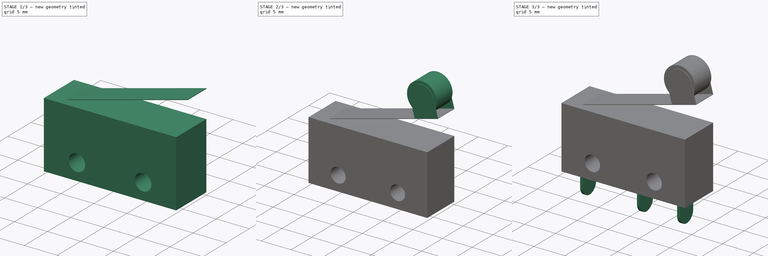
[diagram: build sequence overview — one tinted view per stage of 3, left to right]
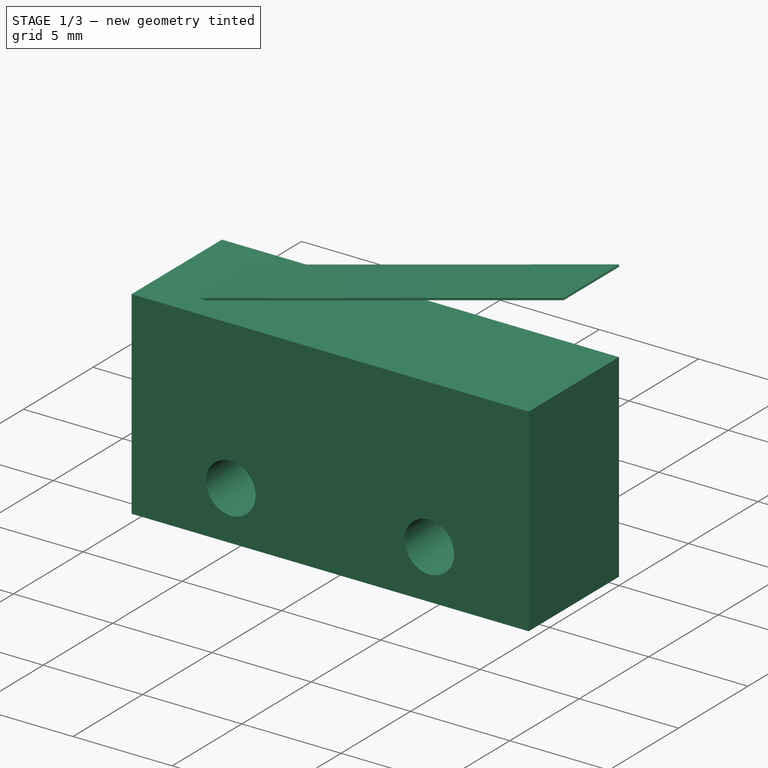
[diagram: stage 1 of 3 — iso view after this stage's code; geometry added in this stage tinted green]
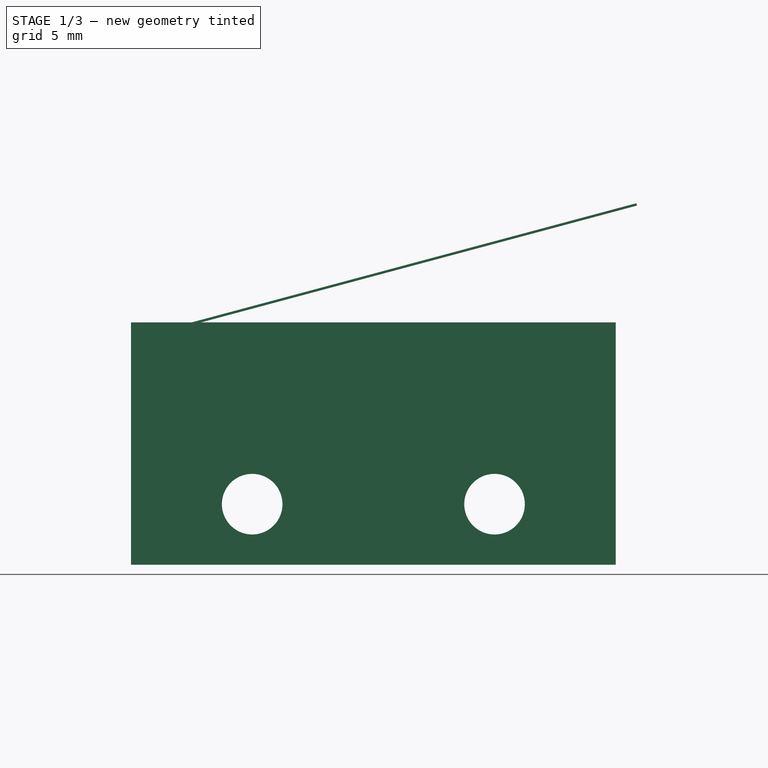
[diagram: stage 1 of 3 — front view after this stage's code; geometry added in this stage tinted green]
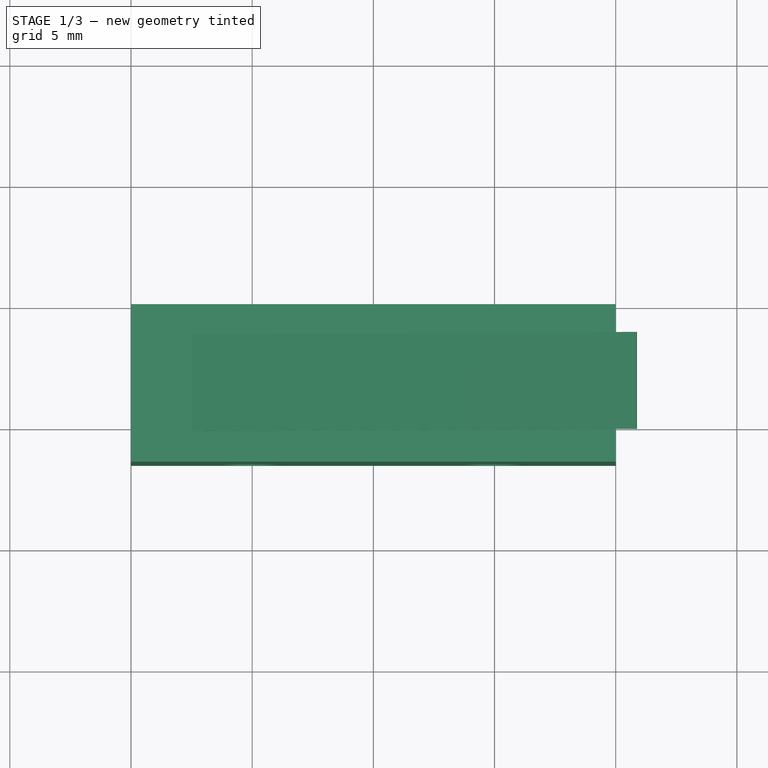
[diagram: stage 1 of 3 — top view after this stage's code; geometry added in this stage tinted green]
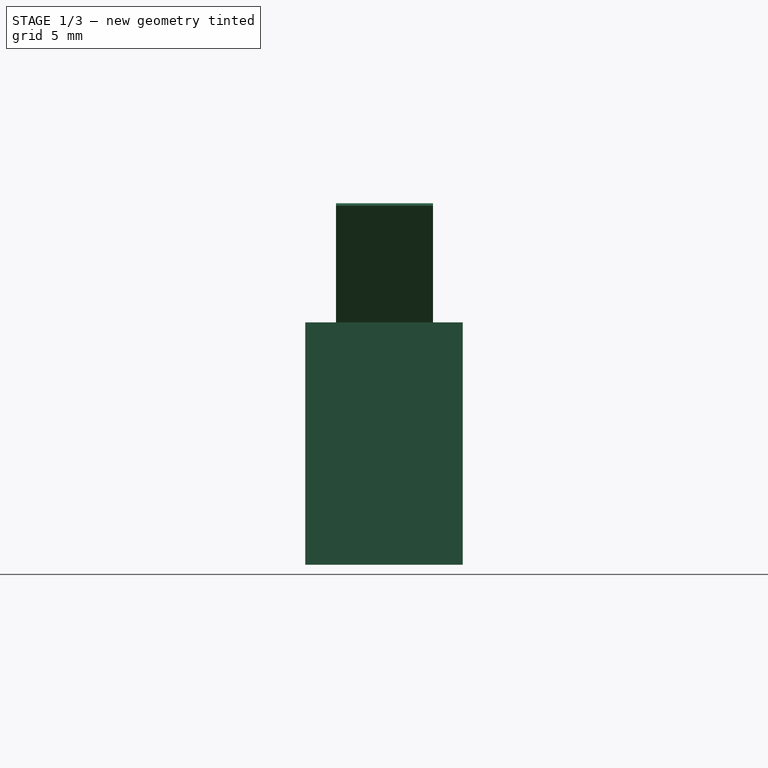
[diagram: stage 1 of 3 — right view after this stage's code; geometry added in this stage tinted green]
FCSTD DOCUMENT  (FreeCAD 1.0R39285 (Git))
Label: InduSKY-Endschalter
License: All rights reserved
LicenseURL: https://en.wikipedia.org/wiki/All_rights_reserved
objects: Sketcher::SketchObject×5, PartDesign::Pad×5, PartDesign::Fillet×2, PartDesign::Body×1
note: 32 computed .brp shape members not serialized (recipe doc carries the construction recipe); baked Part::Feature solids carry a one-line shape summary decoded from their .brp

FEATURE [Sketcher::SketchObject] Sketch
  ArcFitTolerance = 1e-06
  AttachmentSupport = -> [XZ_Plane]
  FullyConstrained = true
  MakeInternals = false
  MapMode = 5
  Placement = pos=(0,0,0) rot=(1,0,0;1.5708rad)
  sketch-geometry (10):
    g0: LineSegment StartX=0 StartY=0 StartZ=0 EndX=20 EndY=0 EndZ=0
    g1: LineSegment StartX=20 StartY=0 StartZ=0 EndX=20 EndY=10 EndZ=0
    g2: LineSegment StartX=20 StartY=10 StartZ=0 EndX=0 EndY=10 EndZ=0
    g3: LineSegment StartX=0 StartY=10 StartZ=0 EndX=0 EndY=0 EndZ=0
    g4: Circle CenterX=5 CenterY=2.5 CenterZ=0 NormalX=0 NormalY=0 NormalZ=1 AngleXU=0 Radius=1.25
    g5: Circle CenterX=15 CenterY=2.5 CenterZ=0 NormalX=0 NormalY=0 NormalZ=1 AngleXU=0 Radius=1.25
    g6: LineSegment [constr] StartX=5 StartY=2.5 StartZ=0 EndX=0 EndY=2.5 EndZ=0
    g7: LineSegment [constr] StartX=5 StartY=2.5 StartZ=0 EndX=15 EndY=2.5 EndZ=0
    g8: LineSegment [constr] StartX=15 StartY=2.5 StartZ=0 EndX=20 EndY=2.5 EndZ=0
    g9: LineSegment [constr] StartX=15 StartY=2.5 StartZ=0 EndX=15 EndY=0 EndZ=0
  constraints (28):
    c: Coincident(g0,g1)
    c: Coincident(g1,g2)
    c: Coincident(g2,g3)
    c: Coincident(g3,g0)
    c: Horizontal(g0)
    c: Horizontal(g2)
    c: Vertical(g1)
    c: Vertical(g3)
    c: Distance(g1,g3) = 20
    c: Distance(g0,g2) = 10
    c: Coincident(g0,g-1)
    c: Equal(g4,g5)
    c: Coincident(g6,g4)
    c: PointOnObject(g6,g3)
    c: Horizontal(g6)
    c: Coincident(g7,g4)
    c: Coincident(g7,g5)
    c: Horizontal(g7)
    c: Coincident(g8,g5)
    c: PointOnObject(g8,g1)
    c: Horizontal(g8)
    c: Equal(g6,g8)
    c: DistanceX(g8,g8) = 5
    c: Diameter(g5) = 2.5
    c: Coincident(g9,g5)
    c: PointOnObject(g9,g0)
    c: Vertical(g9)
    c: DistanceY(g9,g9) = 2.5
FEATURE [PartDesign::Pad] Pad
  Direction = (0,-1,2e-16)
  Length = 6.5
  Length2 = 10
  Placement = pos=(0,0,0) rot=(1,0,0;1.5708rad)
  Profile = -> Sketch
  ReferenceAxis = -> Sketch [N_Axis]
  Refine = true
  Suppressed = false
  Type = 0
FEATURE [Sketcher::SketchObject] Sketch001
  ArcFitTolerance = 1e-06
  AttachmentOffset = pos=(-2.5,-1.5,0) rot=(0,1,0;0.261799rad)
  AttachmentSupport = -> [Pad]
  ExternalGeometry = -> [Pad]
  FullyConstrained = true
  MakeInternals = false
  MapMode = 5
  Placement = pos=(2.5,1.5,10) rot=(-0.130526,0,0.991445;3.14159rad)
  sketch-geometry (6):
    g0: LineSegment StartX=0 StartY=2.72892 StartZ=0 EndX=0 EndY=6.72892 EndZ=0
    g1: LineSegment StartX=0 StartY=6.72892 StartZ=0 EndX=-19 EndY=6.72892 EndZ=0
    g2: LineSegment StartX=-19 StartY=6.72892 StartZ=0 EndX=-19 EndY=2.72892 EndZ=0
    g3: LineSegment StartX=-19 StartY=2.72892 StartZ=0 EndX=0 EndY=2.72892 EndZ=0
    g4: LineSegment [constr] StartX=2.41481 StartY=8 StartZ=0 EndX=0 EndY=6.72892 EndZ=0
    g5: LineSegment [constr] StartX=0 StartY=2.72892 StartZ=0 EndX=0 EndY=0 EndZ=0
  constraints (16):
    c: Coincident(g0,g1)
    c: Coincident(g1,g2)
    c: Coincident(g2,g3)
    c: Coincident(g3,g0)
    c: Vertical(g0)
    c: Vertical(g2)
    c: Horizontal(g1)
    c: Horizontal(g3)
    c: Distance(g0,g2) = 19
    c: Distance(g1,g3) = 4
    c: PointOnObject(g0,g-2)
    c: Coincident(g4,g-3)
    c: Coincident(g4,g0)
    c: Coincident(g5,g0)
    c: Coincident(g5,g-1)
    c: Equal(g5,g4)
FEATURE [PartDesign::Pad] Pad001
  BaseFeature = -> Pad
  Direction = (-0.258819,0,0.965926)
  Length = 0.1
  Length2 = 10
  Placement = pos=(0,0,0) rot=(1,0,0;1.5708rad)
  Profile = -> Sketch001
  ReferenceAxis = -> Sketch001 [N_Axis]
  Refine = true
  Reversed = true
  Suppressed = false
  Type = 0
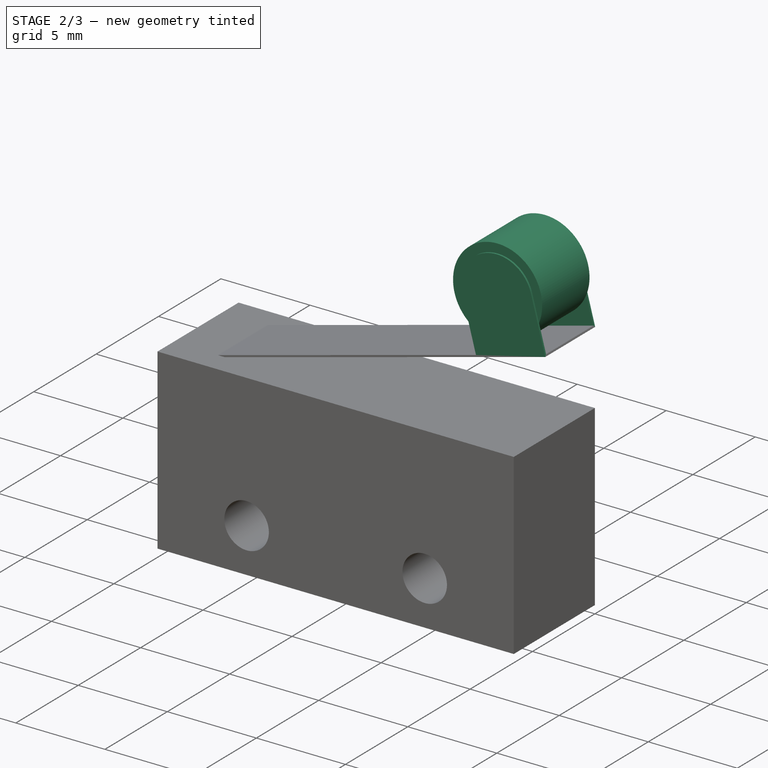
[diagram: stage 2 of 3 — iso view after this stage's code; geometry added in this stage tinted green]
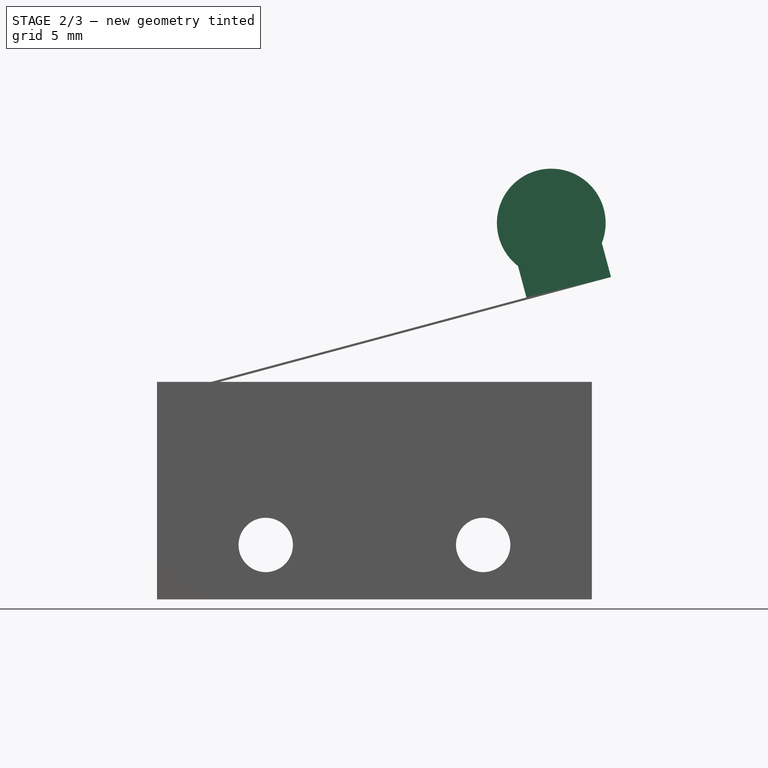
[diagram: stage 2 of 3 — front view after this stage's code; geometry added in this stage tinted green]
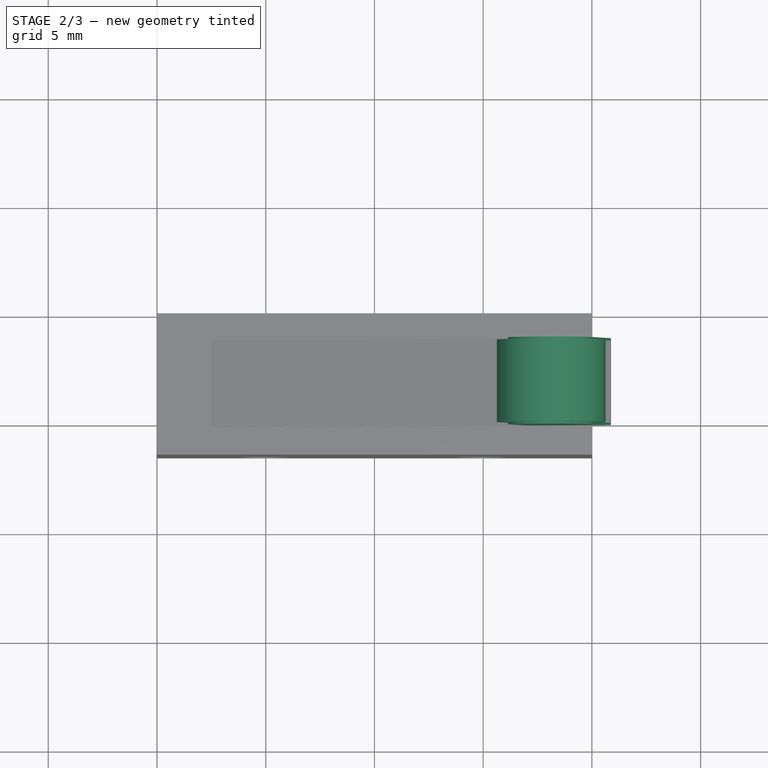
[diagram: stage 2 of 3 — top view after this stage's code; geometry added in this stage tinted green]
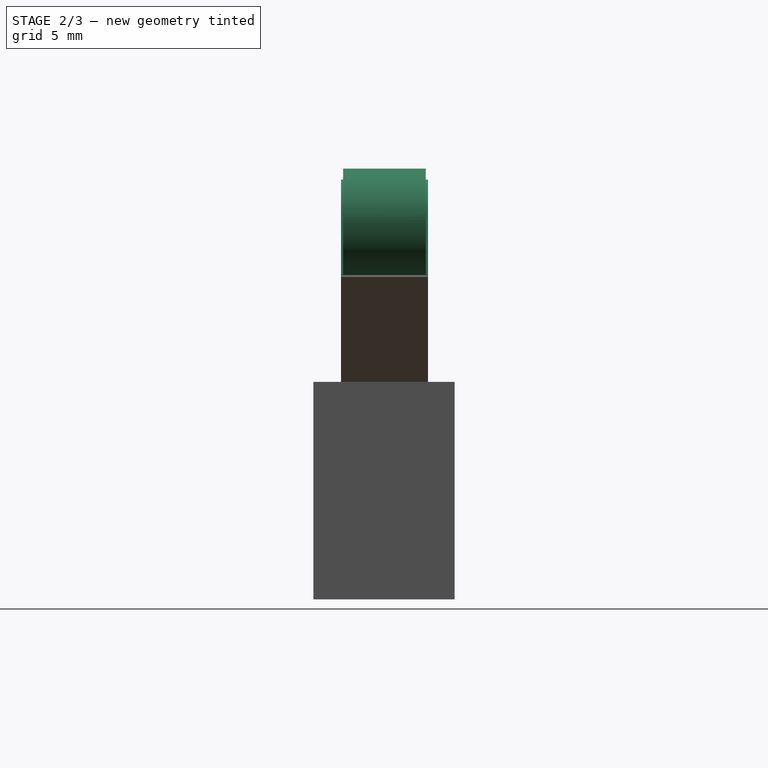
[diagram: stage 2 of 3 — right view after this stage's code; geometry added in this stage tinted green]
FEATURE [Sketcher::SketchObject] Sketch002
  ArcFitTolerance = 1e-06
  AttachmentSupport = -> [Pad001]
  ExternalGeometry = -> [Pad001]
  FullyConstrained = true
  MakeInternals = false
  MapMode = 5
  Placement = pos=(-2.33253,0,8.70513) rot=(-0.130526,0,0.991445;3.14159rad)
  sketch-geometry (8):
    g0: LineSegment StartX=-24.003 StartY=5.22892 StartZ=0 EndX=-24.003 EndY=5.12892 EndZ=0
    g1: LineSegment StartX=-24.003 StartY=5.12892 StartZ=0 EndX=-20.003 EndY=5.12892 EndZ=0
    g2: LineSegment StartX=-20.003 StartY=5.12892 StartZ=0 EndX=-20.003 EndY=5.22892 EndZ=0
    g3: LineSegment StartX=-20.003 StartY=5.22892 StartZ=0 EndX=-24.003 EndY=5.22892 EndZ=0
    g4: LineSegment StartX=-24.003 StartY=1.22892 StartZ=0 EndX=-20.003 EndY=1.22892 EndZ=0
    g5: LineSegment StartX=-20.003 StartY=1.22892 StartZ=0 EndX=-20.003 EndY=1.32892 EndZ=0
    g6: LineSegment StartX=-20.003 StartY=1.32892 StartZ=0 EndX=-24.003 EndY=1.32892 EndZ=0
    g7: LineSegment StartX=-24.003 StartY=1.32892 StartZ=0 EndX=-24.003 EndY=1.22892 EndZ=0
  constraints (22):
    c: Coincident(g0,g1)
    c: Coincident(g1,g2)
    c: Coincident(g2,g3)
    c: Coincident(g3,g0)
    c: Vertical(g0)
    c: Vertical(g2)
    c: Horizontal(g1)
    c: Horizontal(g3)
    c: Distance(g0,g2) = 4
    c: Distance(g1,g3) = 0.1
    c: Coincident(g0,g-3)
    c: Coincident(g4,g5)
    c: Coincident(g5,g6)
    c: Coincident(g6,g7)
    c: Coincident(g7,g4)
    c: Horizontal(g4)
    c: Horizontal(g6)
    c: Vertical(g5)
    c: Vertical(g7)
    c: Coincident(g4,g-4)
    c: Equal(g6,g1)
    c: Equal(g5,g2)
FEATURE [PartDesign::Pad] Pad002
  BaseFeature = -> Pad001
  Direction = (-0.258819,0,0.965926)
  Length = 5
  Length2 = 10
  Placement = pos=(0,0,0) rot=(1,0,0;1.5708rad)
  Profile = -> Sketch002
  ReferenceAxis = -> Sketch002 [N_Axis]
  Refine = true
  Suppressed = false
  Type = 0
FEATURE [PartDesign::Fillet] Fillet
  Base = -> Pad002 [Edge45,Edge42,Edge35,Edge44]
  BaseFeature = -> Pad002
  Placement = pos=(0,0,0) rot=(1,0,0;1.5708rad)
  Radius = 1.99
  Refine = true
  SupportTransform = false
  Suppressed = false
  UseAllEdges = false
FEATURE [Sketcher::SketchObject] Sketch003
  ArcFitTolerance = 1e-06
  AttachmentSupport = -> [Fillet]
  ExternalGeometry = -> [Fillet]
  FullyConstrained = true
  MakeInternals = false
  MapMode = 5
  Placement = pos=(0,-1.32892,0) rot=(1,0,0;1.5708rad)
  sketch-geometry (1):
    g0: Circle CenterX=18.132 CenterY=17.3048 CenterZ=0 NormalX=0 NormalY=0 NormalZ=1 AngleXU=0 Radius=2.5
  constraints (2):
    c: Diameter(g0) = 5
    c: Coincident(g0,g-3)
FEATURE [PartDesign::Pad] Pad003
  BaseFeature = -> Fillet
  Direction = (0,-1,2e-16)
  Length = 3.8
  Length2 = 10
  Placement = pos=(0,0,0) rot=(1,0,0;1.5708rad)
  Profile = -> Sketch003
  ReferenceAxis = -> Sketch003 [N_Axis]
  Refine = true
  Suppressed = false
  Type = 0
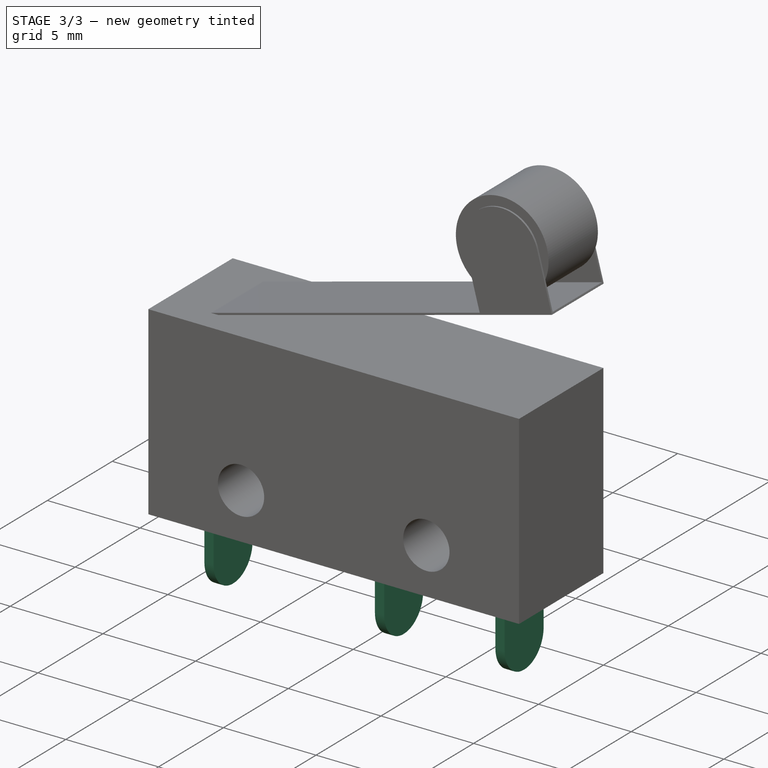
[diagram: stage 3 of 3 — iso view after this stage's code; geometry added in this stage tinted green]
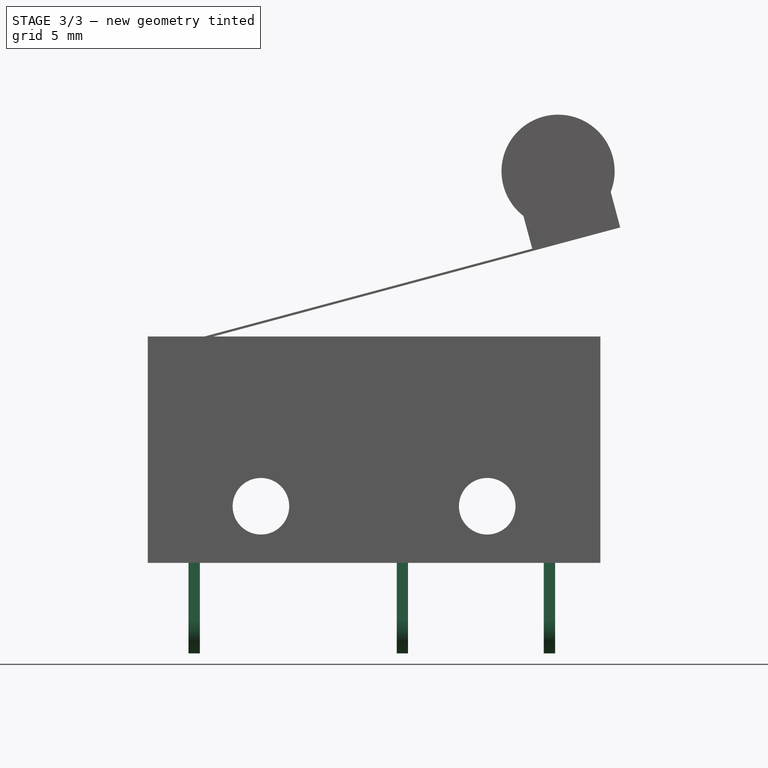
[diagram: stage 3 of 3 — front view after this stage's code; geometry added in this stage tinted green]
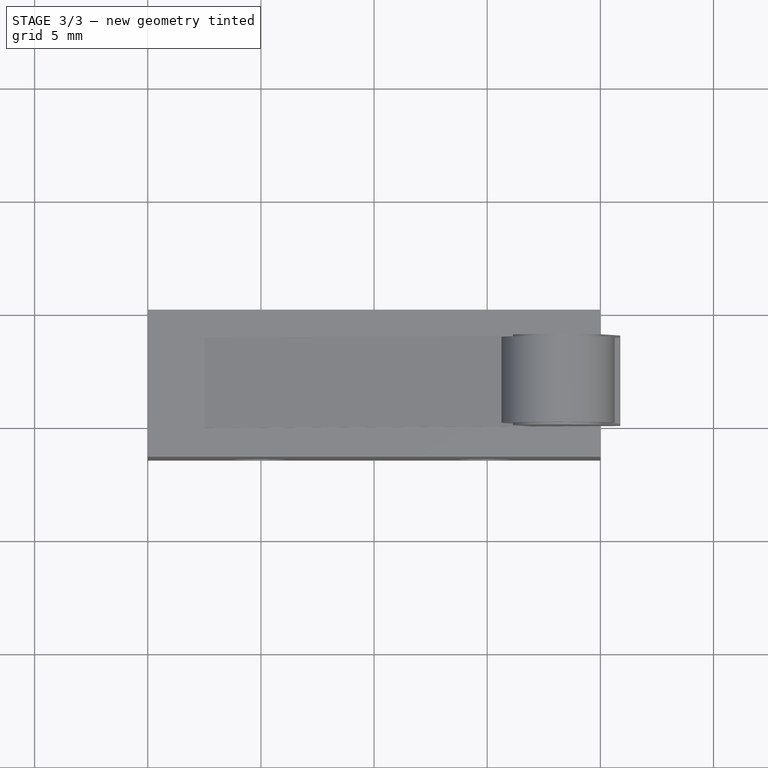
[diagram: stage 3 of 3 — top view after this stage's code; geometry added in this stage tinted green]
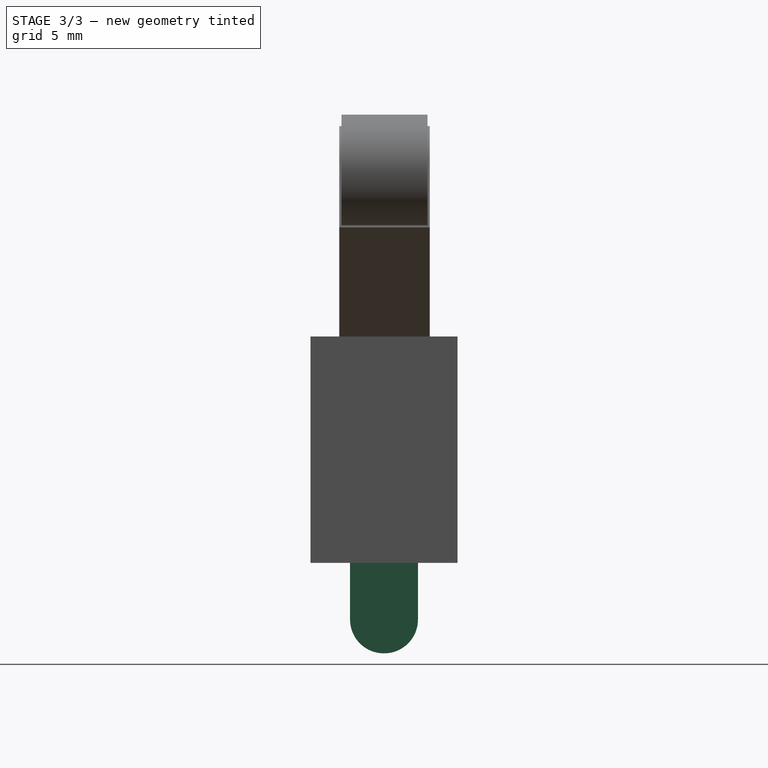
[diagram: stage 3 of 3 — right view after this stage's code; geometry added in this stage tinted green]
FEATURE [Sketcher::SketchObject] Sketch004
  ArcFitTolerance = 1e-06
  AttachmentSupport = -> [Pad003]
  ExternalGeometry = -> [Pad003]
  FullyConstrained = true
  MakeInternals = false
  MapMode = 5
  Placement = pos=(0,0,0) rot=(1,0,0;3.14159rad)
  sketch-geometry (14):
    g0: LineSegment StartX=17.5 StartY=4.75 StartZ=0 EndX=17.5 EndY=1.75 EndZ=0
    g1: LineSegment StartX=17.5 StartY=1.75 StartZ=0 EndX=18 EndY=1.75 EndZ=0
    g2: LineSegment StartX=18 StartY=1.75 StartZ=0 EndX=18 EndY=4.75 EndZ=0
    g3: LineSegment StartX=18 StartY=4.75 StartZ=0 EndX=17.5 EndY=4.75 EndZ=0
    g4: LineSegment [constr] StartX=18 StartY=4.75 StartZ=0 EndX=18 EndY=6.5 EndZ=0
    g5: LineSegment [constr] StartX=18 StartY=1.75 StartZ=0 EndX=18 EndY=0 EndZ=0
    g6: LineSegment StartX=11.5 StartY=4.75 StartZ=0 EndX=11.5 EndY=1.75 EndZ=0
    g7: LineSegment StartX=11.5 StartY=1.75 StartZ=0 EndX=11 EndY=1.75 EndZ=0
    g8: LineSegment StartX=11 StartY=1.75 StartZ=0 EndX=11 EndY=4.75 EndZ=0
    g9: LineSegment StartX=11 StartY=4.75 StartZ=0 EndX=11.5 EndY=4.75 EndZ=0
    g10: LineSegment StartX=1.8 StartY=4.75 StartZ=0 EndX=1.8 EndY=1.75 EndZ=0
    g11: LineSegment StartX=1.8 StartY=1.75 StartZ=0 EndX=2.3 EndY=1.75 EndZ=0
    g12: LineSegment StartX=2.3 StartY=1.75 StartZ=0 EndX=2.3 EndY=4.75 EndZ=0
    g13: LineSegment StartX=2.3 StartY=4.75 StartZ=0 EndX=1.8 EndY=4.75 EndZ=0
  constraints (42):
    c: Coincident(g0,g1)
    c: Coincident(g1,g2)
    c: Coincident(g2,g3)
    c: Coincident(g3,g0)
    c: Vertical(g0)
    c: Vertical(g2)
    c: Horizontal(g1)
    c: Horizontal(g3)
    c: DistanceX(g1,g-4) = 2
    c: DistanceX(g1,g1) = 0.5
    c: DistanceY(g2,g2) = 3
    c: Coincident(g4,g2)
    c: Vertical(g4)
    c: Coincident(g5,g1)
    c: PointOnObject(g5,g-1)
    c: Vertical(g5)
    c: Equal(g4,g5)
    c: Horizontal(g4,g-3)
    c: Coincident(g6,g7)
    c: Coincident(g7,g8)
    c: Coincident(g8,g9)
    c: Coincident(g9,g6)
    c: Vertical(g6)
    c: Vertical(g8)
    c: Horizontal(g7)
    c: Horizontal(g9)
    c: Equal(g8,g0)
    c: Equal(g9,g3)
    c: Horizontal(g8,g0)
    c: DistanceX(g8,g-3) = 9
    c: Coincident(g10,g11)
    c: Coincident(g11,g12)
    c: Coincident(g12,g13)
    c: Coincident(g13,g10)
    c: Vertical(g10)
    c: Vertical(g12)
    c: Horizontal(g11)
    c: Horizontal(g13)
    c: Equal(g12,g8)
    c: Equal(g13,g9)
    c: Horizontal(g12,g8)
    c: DistanceX(g-1,g10) = 1.8
FEATURE [PartDesign::Pad] Pad004
  BaseFeature = -> Pad003
  Direction = (0,0,-1)
  Length = 4
  Length2 = 10
  Placement = pos=(0,0,0) rot=(1,0,0;1.5708rad)
  Profile = -> Sketch004
  ReferenceAxis = -> Sketch004 [N_Axis]
  Refine = true
  Suppressed = false
  Type = 0
FEATURE [PartDesign::Fillet] Fillet001
  Base = -> Pad004 [Edge86,Edge90,Edge107,Edge104,Edge94,Edge98]
  BaseFeature = -> Pad004
  Placement = pos=(0,0,0) rot=(1,0,0;1.5708rad)
  Radius = 1.49
  Refine = true
  SupportTransform = false
  Suppressed = false
  UseAllEdges = false
FEATURE [PartDesign::Body] Body  label="Körper"
  AllowCompound = false
  Group = -> [Sketch,Pad,Sketch001,Pad001,Sketch002,Pad002,Fillet,Sketch003,Pad003,Sketch004,Pad004,Fillet001]
  Origin = -> Origin
  Tip = -> Fillet001
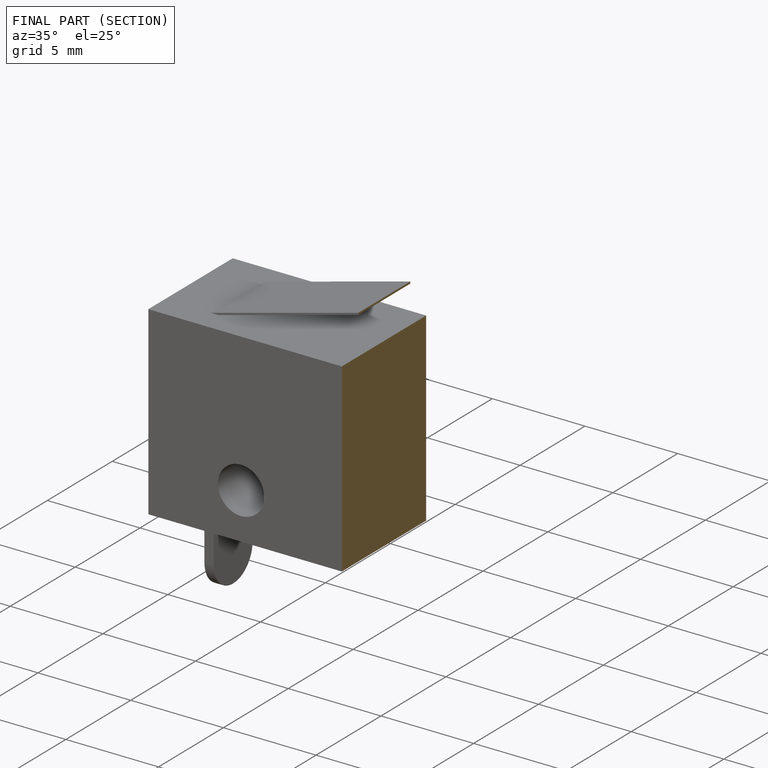
[diagram: finished part — half-section view (interior)]
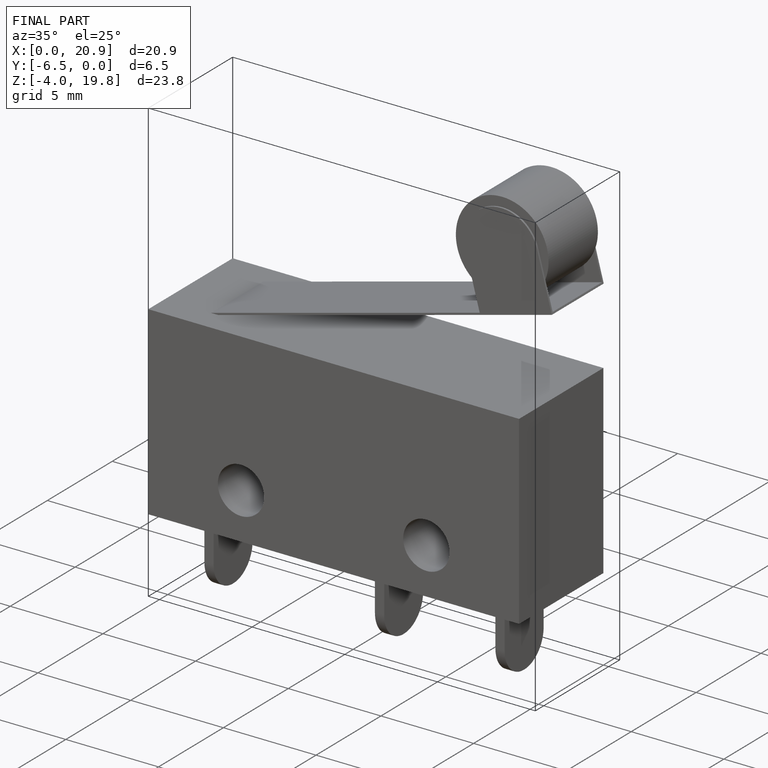
[diagram: finished part — iso view with bounding-box wireframe]
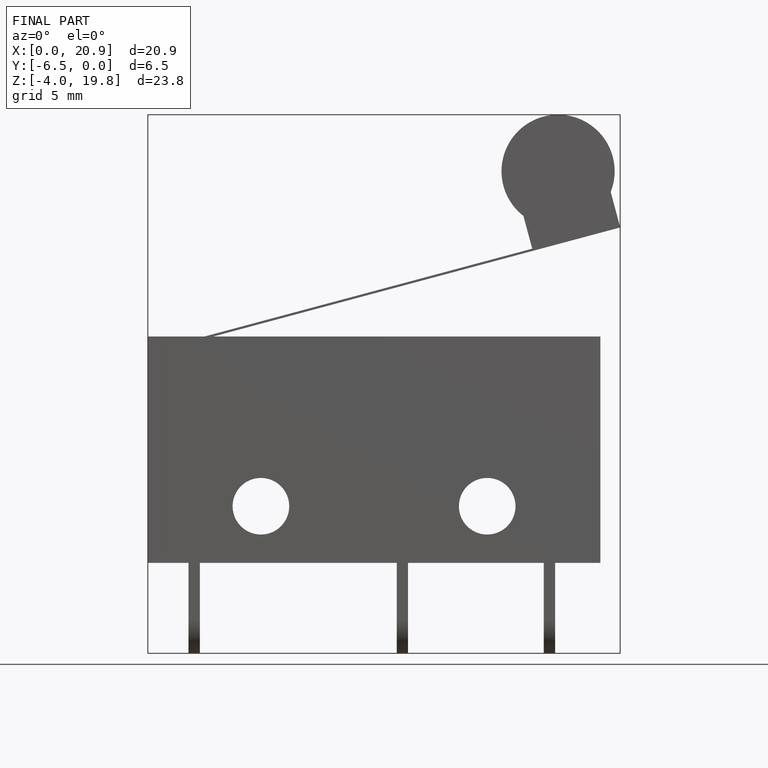
[diagram: finished part — front view with bounding-box wireframe]
